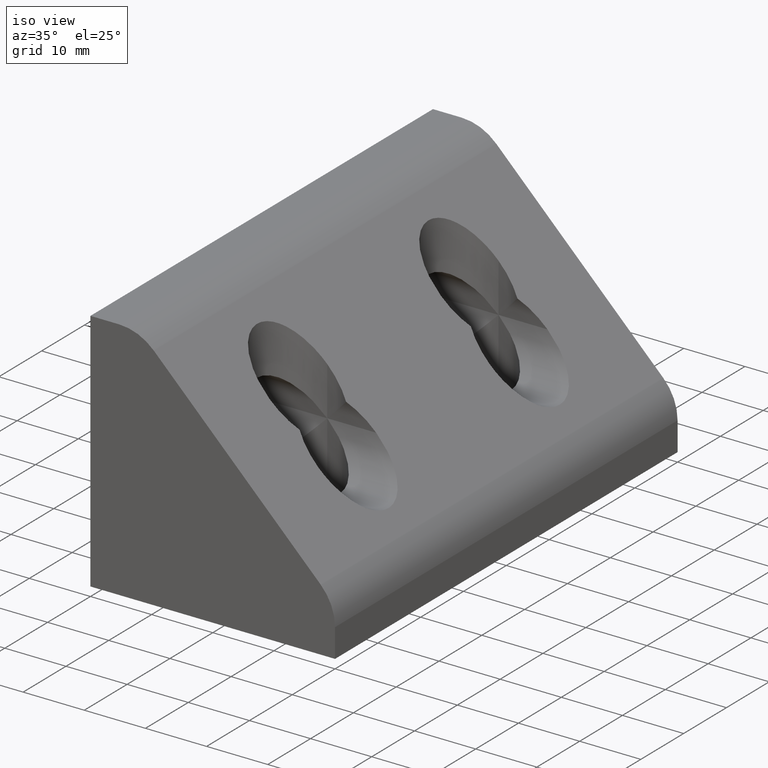
[diagram: clean part render]
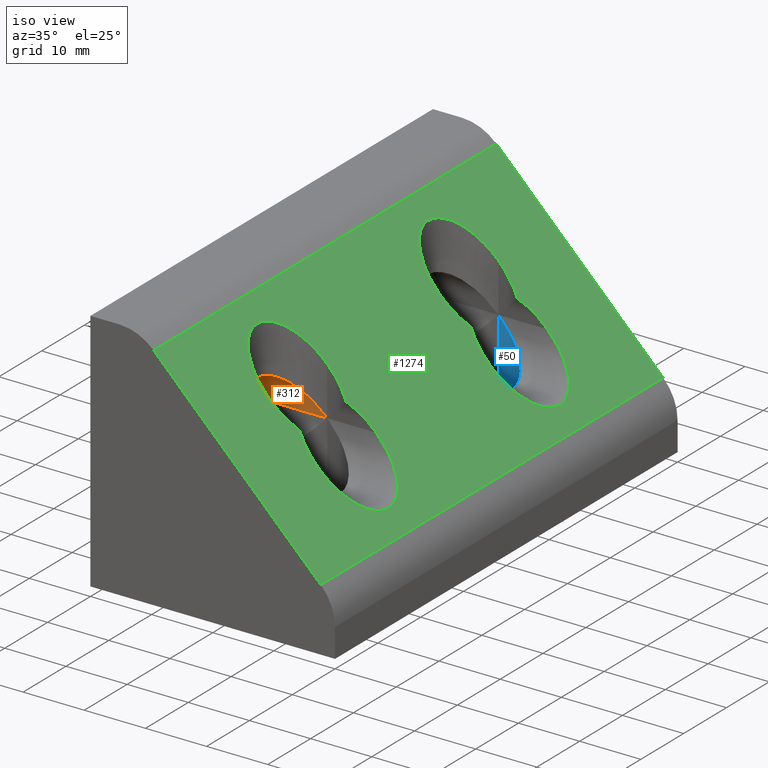
[diagram: same view with three faces highlighted in distinct colors, each labeled with its STEP entity id]
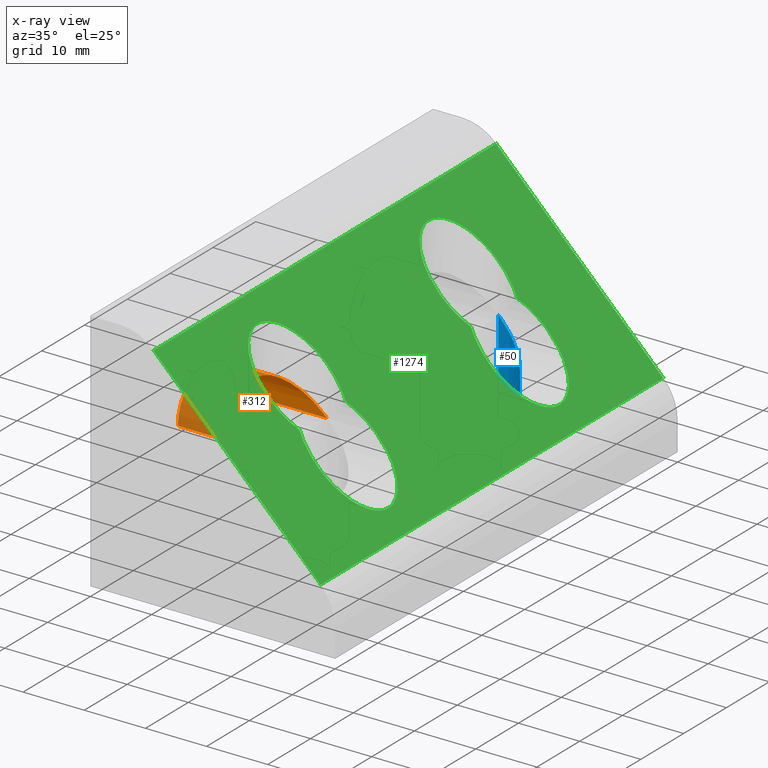
[diagram: x-ray of the same camera — body ghosted, the three highlighted faces saturated]
A machine part, iso view with three faces highlighted in distinct colors.
The next image is the same camera in x-ray (body ghosted, the three faces saturated) — at least one of them is partly hidden behind the body in this view.
Their STEP definitions:

[orange] entity #312 — the highlighted cylindrical surface (partial cylindrical patch) has radius 6.75 mm, axis along (-1, 0, -0).
#98=CARTESIAN_POINT('',(19.999999999999996,-13.250000000000000,20.000000000000018));
#99=VERTEX_POINT('',#98);
#100=CARTESIAN_POINT('',(19.999999999999993,-26.750000000000011,20.000000000000018));
#101=VERTEX_POINT('',#100);
#268=CARTESIAN_POINT('',(20.000000009999994,-19.999999999999996,20.000000000000018));
#269=DIRECTION('',(-1.0,1.224647E-016,-7.498799E-033));
#270=DIRECTION('',(0.0,-6.123234E-017,-1.0));
#271=AXIS2_PLACEMENT_3D('',#268,#269,#270);
#272=CYLINDRICAL_SURFACE('',#271,6.749999999999997);
#273=CARTESIAN_POINT('',(19.999999999999996,-13.250000000000000,20.000000000000018));
#274=CARTESIAN_POINT('',(6.500000000000002,-13.249999999999989,33.500000000000007));
#275=CARTESIAN_POINT('',(6.500000000000000,-26.749999999999996,33.500000000000007));
#276=CARTESIAN_POINT('',(19.999999999999993,-26.750000000000011,20.000000000000018));
#284=(BOUNDED_CURVE()B_SPLINE_CURVE(3,(#273,#274,#275,#276),.UNSPECIFIED.,.F.,.U.)B_SPLINE_CURVE_WITH_KNOTS((4,4),(4.712388980384691,7.853981633974483),.UNSPECIFIED.)CURVE()GEOMETRIC_REPRESENTATION_ITEM()RATIONAL_B_SPLINE_CURVE((1.0,0.333333333333333,0.333333333333333,1.0))REPRESENTATION_ITEM(''));
#285=EDGE_CURVE('',#99,#101,#284,.T.);
#286=ORIENTED_EDGE('',*,*,#285,.T.);
#287=CARTESIAN_POINT('',(4.999999999999996,-26.750000000000000,20.000000000000018));
#288=VERTEX_POINT('',#287);
#289=CARTESIAN_POINT('',(19.999999999999993,-26.749999999999996,20.000000000000018));
#290=DIRECTION('',(-1.0,0.0,0.0));
#291=VECTOR('',#290,14.999999999999996);
#292=LINE('',#289,#291);
#293=EDGE_CURVE('',#101,#288,#292,.T.);
#294=ORIENTED_EDGE('',*,*,#293,.T.);
#295=CARTESIAN_POINT('',(4.999999999999998,-13.249999999999998,20.000000000000018));
#296=VERTEX_POINT('',#295);
#297=CARTESIAN_POINT('',(4.999999999999997,-20.0,20.000000000000018));
#298=DIRECTION('',(1.0,-1.224647E-016,7.498799E-033));
#299=DIRECTION('',(1.224647E-016,1.0,-6.123234E-017));
#300=AXIS2_PLACEMENT_3D('',#297,#298,#299);
#301=CIRCLE('',#300,6.749999999999997);
#302=EDGE_CURVE('',#296,#288,#301,.T.);
#303=ORIENTED_EDGE('',*,*,#302,.F.);
#304=CARTESIAN_POINT('',(19.999999999999996,-13.250000000000000,20.000000000000018));
#305=DIRECTION('',(-1.0,0.0,0.0));
#306=VECTOR('',#305,14.999999999999996);
#307=LINE('',#304,#306);
#308=EDGE_CURVE('',#99,#296,#307,.T.);
#309=ORIENTED_EDGE('',*,*,#308,.F.);
#310=EDGE_LOOP('',(#286,#294,#303,#309));
#311=FACE_OUTER_BOUND('',#310,.T.);
#312=ADVANCED_FACE('',(#311),#272,.F.);

[blue] entity #50 — the highlighted cylindrical surface (partial cylindrical patch) has radius 6.75 mm, axis along (0, -0, -1).
#2=CARTESIAN_POINT('',(20.0,20.0,20.000000009999997));
#3=DIRECTION('',(0.0,-6.123234E-017,-1.0));
#4=DIRECTION('',(-1.0,1.224647E-016,-7.498799E-033));
#5=AXIS2_PLACEMENT_3D('',#2,#3,#4);
#6=CYLINDRICAL_SURFACE('',#5,6.749999999999997);
#7=CARTESIAN_POINT('',(20.0,26.749999999999996,20.0));
#8=VERTEX_POINT('',#7);
#9=CARTESIAN_POINT('',(19.999999999999996,13.250000000000000,20.0));
#10=VERTEX_POINT('',#9);
#11=CARTESIAN_POINT('',(20.0,26.749999999999996,20.0));
#12=CARTESIAN_POINT('',(33.500000000000000,26.749999999999968,6.499999999999999));
#13=CARTESIAN_POINT('',(33.500000000000000,13.250000000000027,6.499999999999999));
#14=CARTESIAN_POINT('',(19.999999999999996,13.250000000000000,20.0));
#22=(BOUNDED_CURVE()B_SPLINE_CURVE(3,(#11,#12,#13,#14),.UNSPECIFIED.,.F.,.U.)B_SPLINE_CURVE_WITH_KNOTS((4,4),(1.570796326794897,4.712388980384691),.UNSPECIFIED.)CURVE()GEOMETRIC_REPRESENTATION_ITEM()RATIONAL_B_SPLINE_CURVE((1.0,0.333333333333333,0.333333333333333,1.0))REPRESENTATION_ITEM(''));
#23=EDGE_CURVE('',#8,#10,#22,.T.);
#24=ORIENTED_EDGE('',*,*,#23,.F.);
#25=CARTESIAN_POINT('',(20.0,26.749999999999996,4.999999999999998));
#26=VERTEX_POINT('',#25);
#27=CARTESIAN_POINT('',(20.0,26.749999999999996,20.0));
#28=DIRECTION('',(0.0,0.0,-1.0));
#29=VECTOR('',#28,15.0);
#30=LINE('',#27,#29);
#31=EDGE_CURVE('',#8,#26,#30,.T.);
#32=ORIENTED_EDGE('',*,*,#31,.T.);
#33=CARTESIAN_POINT('',(19.999999999999996,13.249999999999998,4.999999999999999));
#34=VERTEX_POINT('',#33);
#35=CARTESIAN_POINT('',(20.0,19.999999999999996,4.999999999999999));
#36=DIRECTION('',(0.0,6.123234E-017,1.0));
#37=DIRECTION('',(-1.224647E-016,-1.0,6.123234E-017));
#38=AXIS2_PLACEMENT_3D('',#35,#36,#37);
#39=CIRCLE('',#38,6.749999999999997);
#40=EDGE_CURVE('',#34,#26,#39,.T.);
#41=ORIENTED_EDGE('',*,*,#40,.F.);
#42=CARTESIAN_POINT('',(19.999999999999996,13.250000000000000,20.0));
#43=DIRECTION('',(0.0,0.0,-1.0));
#44=VECTOR('',#43,15.0);
#45=LINE('',#42,#44);
#46=EDGE_CURVE('',#10,#34,#45,.T.);
#47=ORIENTED_EDGE('',*,*,#46,.F.);
#48=EDGE_LOOP('',(#24,#32,#41,#47));
#49=FACE_OUTER_BOUND('',#48,.T.);
#50=ADVANCED_FACE('',(#49),#6,.F.);

[green] entity #1274 — the highlighted planar face has unit normal (0.7071, -0, 0.7071).
#363=CARTESIAN_POINT('',(20.0,26.749999999999996,28.000000000000011));
#364=VERTEX_POINT('',#363);
#365=CARTESIAN_POINT('',(24.0,25.437140792732887,24.000000000000007));
#366=VERTEX_POINT('',#365);
#367=CARTESIAN_POINT('',(20.0,26.749999999999996,28.000000000000011));
#368=CARTESIAN_POINT('',(21.451571303647832,26.749999999999968,26.548428696352186));
#369=CARTESIAN_POINT('',(22.830755918722367,26.297331194894536,25.169244081277650));
#370=CARTESIAN_POINT('',(24.0,25.437140792732887,24.000000000000007));
#378=(BOUNDED_CURVE()B_SPLINE_CURVE(3,(#367,#368,#369,#370),.UNSPECIFIED.,.F.,.U.)B_SPLINE_CURVE_WITH_KNOTS((4,4),(4.712388980384691,5.346662628507185),.UNSPECIFIED.)CURVE()GEOMETRIC_REPRESENTATION_ITEM()RATIONAL_B_SPLINE_CURVE((1.0,0.966754790301429,0.966754790301429,1.0))REPRESENTATION_ITEM(''));
#379=EDGE_CURVE('',#364,#366,#378,.T.);
#410=CARTESIAN_POINT('',(19.999999999999996,13.250000000000000,28.000000000000011));
#411=VERTEX_POINT('',#410);
#412=CARTESIAN_POINT('',(19.999999999999996,13.250000000000000,28.000000000000011));
#413=CARTESIAN_POINT('',(6.500000000000005,13.250000000000032,41.500000000000021));
#414=CARTESIAN_POINT('',(6.500000000000007,26.750000000000007,41.500000000000021));
#415=CARTESIAN_POINT('',(20.0,26.749999999999996,28.000000000000011));
#423=(BOUNDED_CURVE()B_SPLINE_CURVE(3,(#412,#413,#414,#415),.UNSPECIFIED.,.F.,.U.)B_SPLINE_CURVE_WITH_KNOTS((4,4),(1.570796326794897,4.712388980384691),.UNSPECIFIED.)CURVE()GEOMETRIC_REPRESENTATION_ITEM()RATIONAL_B_SPLINE_CURVE((1.0,0.333333333333333,0.333333333333333,1.0))REPRESENTATION_ITEM(''));
#424=EDGE_CURVE('',#411,#364,#423,.T.);
#441=CARTESIAN_POINT('',(19.999999999999996,-13.250000000000011,28.000000000000021));
#442=VERTEX_POINT('',#441);
#443=CARTESIAN_POINT('',(23.999999999999993,-14.562859207267122,24.000000000000011));
#444=VERTEX_POINT('',#443);
#445=CARTESIAN_POINT('',(19.999999999999996,-13.250000000000011,28.000000000000021));
#446=CARTESIAN_POINT('',(21.451571303647828,-13.250000000000011,26.548428696352186));
#447=CARTESIAN_POINT('',(22.830755918722357,-13.702668805105437,25.169244081277661));
#448=CARTESIAN_POINT('',(23.999999999999993,-14.562859207267122,24.000000000000011));
#456=(BOUNDED_CURVE()B_SPLINE_CURVE(3,(#445,#446,#447,#448),.UNSPECIFIED.,.F.,.U.)B_SPLINE_CURVE_WITH_KNOTS((4,4),(4.712388980384691,5.346662628507187),.UNSPECIFIED.)CURVE()GEOMETRIC_REPRESENTATION_ITEM()RATIONAL_B_SPLINE_CURVE((1.0,0.966754790301428,0.966754790301428,1.0))REPRESENTATION_ITEM(''));
#457=EDGE_CURVE('',#442,#444,#456,.T.);
#488=CARTESIAN_POINT('',(19.999999999999993,-26.750000000000011,28.000000000000021));
#489=VERTEX_POINT('',#488);
#490=CARTESIAN_POINT('',(19.999999999999993,-26.750000000000011,28.000000000000021));
#491=CARTESIAN_POINT('',(6.500000000000000,-26.750000000000007,41.500000000000028));
#492=CARTESIAN_POINT('',(6.500000000000002,-13.250000000000000,41.500000000000028));
#493=CARTESIAN_POINT('',(19.999999999999996,-13.250000000000011,28.000000000000021));
#501=(BOUNDED_CURVE()B_SPLINE_CURVE(3,(#490,#491,#492,#493),.UNSPECIFIED.,.F.,.U.)B_SPLINE_CURVE_WITH_KNOTS((4,4),(1.570796326794897,4.712388980384691),.UNSPECIFIED.)CURVE()GEOMETRIC_REPRESENTATION_ITEM()RATIONAL_B_SPLINE_CURVE((1.0,0.333333333333333,0.333333333333333,1.0))REPRESENTATION_ITEM(''));
#502=EDGE_CURVE('',#489,#442,#501,.T.);
#519=CARTESIAN_POINT('',(28.0,-26.749999999999996,20.000000000000018));
#520=VERTEX_POINT('',#519);
#521=CARTESIAN_POINT('',(23.999999999999993,-25.437140792732894,24.000000000000011));
#522=VERTEX_POINT('',#521);
#523=CARTESIAN_POINT('',(28.0,-26.749999999999996,20.000000000000018));
#524=CARTESIAN_POINT('',(26.548428696352197,-26.749999999999996,21.451571303647846));
#525=CARTESIAN_POINT('',(25.169244081277640,-26.297331194894568,22.830755918722375));
#526=CARTESIAN_POINT('',(23.999999999999993,-25.437140792732894,24.000000000000011));
#534=(BOUNDED_CURVE()B_SPLINE_CURVE(3,(#523,#524,#525,#526),.UNSPECIFIED.,.F.,.U.)B_SPLINE_CURVE_WITH_KNOTS((4,4),(4.712388980384691,5.346662628507187),.UNSPECIFIED.)CURVE()GEOMETRIC_REPRESENTATION_ITEM()RATIONAL_B_SPLINE_CURVE((1.0,0.966754790301428,0.966754790301428,1.0))REPRESENTATION_ITEM(''));
#535=EDGE_CURVE('',#520,#522,#534,.T.);
#566=CARTESIAN_POINT('',(28.000000000000004,-13.250000000000002,20.000000000000018));
#567=VERTEX_POINT('',#566);
#568=CARTESIAN_POINT('',(28.000000000000004,-13.250000000000002,20.000000000000018));
#569=CARTESIAN_POINT('',(41.500000000000014,-13.249999999999995,6.500000000000015));
#570=CARTESIAN_POINT('',(41.500000000000014,-26.749999999999996,6.500000000000016));
#571=CARTESIAN_POINT('',(28.0,-26.749999999999996,20.000000000000018));
#579=(BOUNDED_CURVE()B_SPLINE_CURVE(3,(#568,#569,#570,#571),.UNSPECIFIED.,.F.,.U.)B_SPLINE_CURVE_WITH_KNOTS((4,4),(1.570796326794897,4.712388980384691),.UNSPECIFIED.)CURVE()GEOMETRIC_REPRESENTATION_ITEM()RATIONAL_B_SPLINE_CURVE((1.0,0.333333333333333,0.333333333333333,1.0))REPRESENTATION_ITEM(''));
#580=EDGE_CURVE('',#567,#520,#579,.T.);
#597=CARTESIAN_POINT('',(28.000000000000004,13.249999999999998,20.0));
#598=VERTEX_POINT('',#597);
#599=CARTESIAN_POINT('',(24.0,14.562859207267115,24.000000000000007));
#600=VERTEX_POINT('',#599);
#601=CARTESIAN_POINT('',(28.000000000000004,13.249999999999998,20.0));
#602=CARTESIAN_POINT('',(26.548428696352200,13.249999999999998,21.451571303647839));
#603=CARTESIAN_POINT('',(25.169244081277643,13.702668805105437,22.830755918722367));
#604=CARTESIAN_POINT('',(24.0,14.562859207267115,24.000000000000007));
#612=(BOUNDED_CURVE()B_SPLINE_CURVE(3,(#601,#602,#603,#604),.UNSPECIFIED.,.F.,.U.)B_SPLINE_CURVE_WITH_KNOTS((4,4),(4.712388980384691,5.346662628507187),.UNSPECIFIED.)CURVE()GEOMETRIC_REPRESENTATION_ITEM()RATIONAL_B_SPLINE_CURVE((1.0,0.966754790301428,0.966754790301428,1.0))REPRESENTATION_ITEM(''));
#613=EDGE_CURVE('',#598,#600,#612,.T.);
#644=CARTESIAN_POINT('',(28.000000000000007,26.749999999999996,20.0));
#645=VERTEX_POINT('',#644);
#646=CARTESIAN_POINT('',(28.000000000000007,26.749999999999996,20.0));
#647=CARTESIAN_POINT('',(41.500000000000014,26.749999999999996,6.499999999999999));
#648=CARTESIAN_POINT('',(41.500000000000014,13.250000000000023,6.499999999999999));
#649=CARTESIAN_POINT('',(28.000000000000004,13.249999999999998,20.0));
#657=(BOUNDED_CURVE()B_SPLINE_CURVE(3,(#646,#647,#648,#649),.UNSPECIFIED.,.F.,.U.)B_SPLINE_CURVE_WITH_KNOTS((4,4),(1.570796326794897,4.712388980384691),.UNSPECIFIED.)CURVE()GEOMETRIC_REPRESENTATION_ITEM()RATIONAL_B_SPLINE_CURVE((1.0,0.333333333333333,0.333333333333333,1.0))REPRESENTATION_ITEM(''));
#658=EDGE_CURVE('',#645,#598,#657,.T.);
#756=CARTESIAN_POINT('',(10.343145750507640,40.0,37.656854249492390));
#757=VERTEX_POINT('',#756);
#765=CARTESIAN_POINT('',(37.656854249492376,39.999999999999993,10.343145750507629));
#766=VERTEX_POINT('',#765);
#767=CARTESIAN_POINT('',(10.343145750507654,40.0,37.656854249492405));
#768=DIRECTION('',(0.707106781186547,-1.839478E-016,-0.707106781186548));
#769=VECTOR('',#768,38.627416997969505);
#770=LINE('',#767,#769);
#771=EDGE_CURVE('',#757,#766,#770,.T.);
#803=CARTESIAN_POINT('',(10.343145750507629,-40.0,37.656854249492390));
#804=VERTEX_POINT('',#803);
#805=CARTESIAN_POINT('',(37.656854249492362,-40.000000000000007,10.343145750507633));
#806=VERTEX_POINT('',#805);
#807=CARTESIAN_POINT('',(10.343145750507636,-40.0,37.656854249492405));
#808=DIRECTION('',(0.707106781186547,-1.839478E-016,-0.707106781186548));
#809=VECTOR('',#808,38.627416997969512);
#810=LINE('',#807,#809);
#811=EDGE_CURVE('',#804,#806,#810,.T.);
#852=CARTESIAN_POINT('',(24.0,25.437140792732887,24.000000000000007));
#853=CARTESIAN_POINT('',(25.169244081277647,26.297331194894536,22.830755918722367));
#854=CARTESIAN_POINT('',(26.548428696352204,26.749999999999996,21.451571303647839));
#855=CARTESIAN_POINT('',(28.000000000000007,26.749999999999996,20.0));
#863=(BOUNDED_CURVE()B_SPLINE_CURVE(3,(#852,#853,#854,#855),.UNSPECIFIED.,.F.,.U.)B_SPLINE_CURVE_WITH_KNOTS((4,4),(0.936522678672401,1.570796326794897),.UNSPECIFIED.)CURVE()GEOMETRIC_REPRESENTATION_ITEM()RATIONAL_B_SPLINE_CURVE((1.0,0.966754790301428,0.966754790301428,1.0))REPRESENTATION_ITEM(''));
#864=EDGE_CURVE('',#366,#645,#863,.T.);
#876=CARTESIAN_POINT('',(23.999999999999993,-14.562859207267122,24.000000000000011));
#877=CARTESIAN_POINT('',(25.169244081277643,-13.702668805105437,22.830755918722382));
#878=CARTESIAN_POINT('',(26.548428696352165,-13.250000000000002,21.451571303647846));
#879=CARTESIAN_POINT('',(28.000000000000004,-13.250000000000002,20.000000000000018));
#887=(BOUNDED_CURVE()B_SPLINE_CURVE(3,(#876,#877,#878,#879),.UNSPECIFIED.,.F.,.U.)B_SPLINE_CURVE_WITH_KNOTS((4,4),(0.936522678672400,1.570796326794897),.UNSPECIFIED.)CURVE()GEOMETRIC_REPRESENTATION_ITEM()RATIONAL_B_SPLINE_CURVE((1.0,0.966754790301428,0.966754790301428,1.0))REPRESENTATION_ITEM(''));
#888=EDGE_CURVE('',#444,#567,#887,.T.);
#900=CARTESIAN_POINT('',(23.999999999999993,-25.437140792732894,24.000000000000011));
#901=CARTESIAN_POINT('',(22.830755918722353,-26.297331194894571,25.169244081277650));
#902=CARTESIAN_POINT('',(21.451571303647825,-26.750000000000011,26.548428696352186));
#903=CARTESIAN_POINT('',(19.999999999999993,-26.750000000000011,28.000000000000021));
#911=(BOUNDED_CURVE()B_SPLINE_CURVE(3,(#900,#901,#902,#903),.UNSPECIFIED.,.F.,.U.)B_SPLINE_CURVE_WITH_KNOTS((4,4),(0.936522678672400,1.570796326794897),.UNSPECIFIED.)CURVE()GEOMETRIC_REPRESENTATION_ITEM()RATIONAL_B_SPLINE_CURVE((1.0,0.966754790301428,0.966754790301428,1.0))REPRESENTATION_ITEM(''));
#912=EDGE_CURVE('',#522,#489,#911,.T.);
#924=CARTESIAN_POINT('',(24.0,14.562859207267115,24.000000000000007));
#925=CARTESIAN_POINT('',(22.830755918722364,13.702668805105437,25.169244081277650));
#926=CARTESIAN_POINT('',(21.451571303647828,13.249999999999979,26.548428696352186));
#927=CARTESIAN_POINT('',(19.999999999999996,13.250000000000000,28.000000000000011));
#935=(BOUNDED_CURVE()B_SPLINE_CURVE(3,(#924,#925,#926,#927),.UNSPECIFIED.,.F.,.U.)B_SPLINE_CURVE_WITH_KNOTS((4,4),(0.936522678672401,1.570796326794897),.UNSPECIFIED.)CURVE()GEOMETRIC_REPRESENTATION_ITEM()RATIONAL_B_SPLINE_CURVE((1.0,0.966754790301429,0.966754790301429,1.0))REPRESENTATION_ITEM(''));
#936=EDGE_CURVE('',#600,#411,#935,.T.);
#1237=CARTESIAN_POINT('',(8.977460325558402,-44.0,39.022539674441646));
#1238=DIRECTION('',(0.707106781186548,-4.329780E-017,0.707106781186547));
#1239=DIRECTION('',(0.707106781186547,-1.298934E-016,-0.707106781186548));
#1240=AXIS2_PLACEMENT_3D('',#1237,#1238,#1239);
#1241=PLANE('',#1240);
#1242=ORIENTED_EDGE('',*,*,#771,.F.);
#1243=CARTESIAN_POINT('',(10.343145750507640,40.0,37.656854249492390));
#1244=DIRECTION('',(0.0,-1.0,0.0));
#1245=VECTOR('',#1244,80.0);
#1246=LINE('',#1243,#1245);
#1247=EDGE_CURVE('',#757,#804,#1246,.T.);
#1248=ORIENTED_EDGE('',*,*,#1247,.T.);
#1249=ORIENTED_EDGE('',*,*,#811,.T.);
#1250=CARTESIAN_POINT('',(37.656854249492362,-40.000000000000007,10.343145750507633));
#1251=DIRECTION('',(0.0,1.0,0.0));
#1252=VECTOR('',#1251,80.0);
#1253=LINE('',#1250,#1252);
#1254=EDGE_CURVE('',#806,#766,#1253,.T.);
#1255=ORIENTED_EDGE('',*,*,#1254,.T.);
#1256=EDGE_LOOP('',(#1242,#1248,#1249,#1255));
#1257=FACE_OUTER_BOUND('',#1256,.T.);
#1258=ORIENTED_EDGE('',*,*,#888,.T.);
#1259=ORIENTED_EDGE('',*,*,#580,.T.);
#1260=ORIENTED_EDGE('',*,*,#535,.T.);
#1261=ORIENTED_EDGE('',*,*,#912,.T.);
#1262=ORIENTED_EDGE('',*,*,#502,.T.);
#1263=ORIENTED_EDGE('',*,*,#457,.T.);
#1264=EDGE_LOOP('',(#1258,#1259,#1260,#1261,#1262,#1263));
#1265=FACE_BOUND('',#1264,.T.);
#1266=ORIENTED_EDGE('',*,*,#864,.T.);
#1267=ORIENTED_EDGE('',*,*,#658,.T.);
#1268=ORIENTED_EDGE('',*,*,#613,.T.);
#1269=ORIENTED_EDGE('',*,*,#936,.T.);
#1270=ORIENTED_EDGE('',*,*,#424,.T.);
#1271=ORIENTED_EDGE('',*,*,#379,.T.);
#1272=EDGE_LOOP('',(#1266,#1267,#1268,#1269,#1270,#1271));
#1273=FACE_BOUND('',#1272,.T.);
#1274=ADVANCED_FACE('',(#1257,#1265,#1273),#1241,.T.);